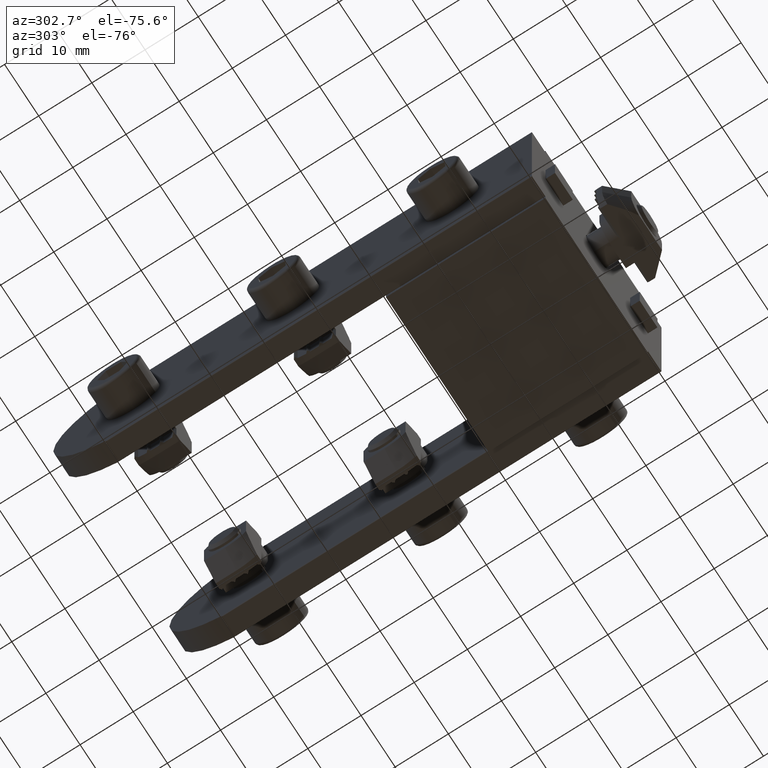
[diagram: clean part render]
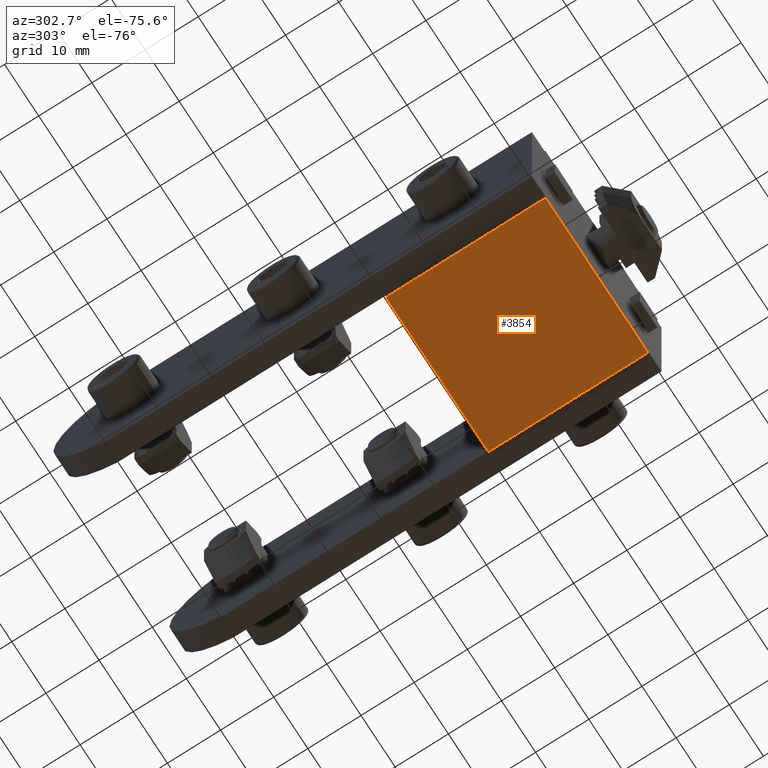
[diagram: same view with one face highlighted and labeled with its STEP entity id]
A machine part, auxiliary view. The second image highlights one B-rep face of the part: STEP entity #3854.
In plain terms, the highlighted planar face has unit normal (-0, 0, 1).
Its self-contained STEP definition (entity closure, byte-faithful):
#328 = DIRECTION ( 'NONE',  ( -2.312964634635742957E-16, -1.000000000000000000, 0.000000000000000000 ) ) ;
#330 = CARTESIAN_POINT ( 'NONE',  ( 14.99999999999999645, 22.50000000000000000, 0.000000000000000000 ) ) ;
#1026 = DIRECTION ( 'NONE',  ( 2.312964634635742957E-16, 1.000000000000000000, 0.000000000000000000 ) ) ;
#1036 = CARTESIAN_POINT ( 'NONE',  ( 14.99999999999999645, 22.50000000000000000, 30.00000000000000000 ) ) ;
#1253 = CARTESIAN_POINT ( 'NONE',  ( 14.99999999999999645, -7.500000000000000000, 30.00000000000000000 ) ) ;
#1342 = CARTESIAN_POINT ( 'NONE',  ( 14.99999999999999645, -7.500000000000000000, 30.00000000000000000 ) ) ;
#1679 = PLANE ( 'NONE',  #3510 ) ;
#2102 = CARTESIAN_POINT ( 'NONE',  ( 14.99999999999999645, -7.500000000000000000, 0.000000000000000000 ) ) ;
#2167 = LINE ( 'NONE', #1342, #2980 ) ;
#2514 = DIRECTION ( 'NONE',  ( -1.000000000000000000, 2.312964634635742957E-16, 0.000000000000000000 ) ) ;
#2603 = CARTESIAN_POINT ( 'NONE',  ( 14.99999999999999645, 22.50000000000000000, 30.00000000000000000 ) ) ;
#2684 = ORIENTED_EDGE ( 'NONE', *, *, #5193, .T. ) ;
#2763 = CARTESIAN_POINT ( 'NONE',  ( 14.99999999999999645, -7.500000000000000000, 30.00000000000000000 ) ) ;
#2802 = CARTESIAN_POINT ( 'NONE',  ( 14.99999999999999645, -7.500000000000000000, 0.000000000000000000 ) ) ;
#2803 = EDGE_CURVE ( 'NONE', #4365, #4702, #4836, .T. ) ;
#2980 = VECTOR ( 'NONE', #5270, 1000.000000000000000 ) ;
#3049 = VERTEX_POINT ( 'NONE', #2102 ) ;
#3144 = CARTESIAN_POINT ( 'NONE',  ( 14.99999999999999645, 22.50000000000000000, 30.00000000000000000 ) ) ;
#3310 = LINE ( 'NONE', #2802, #3425 ) ;
#3318 = EDGE_LOOP ( 'NONE', ( #4884, #4301, #3599, #2684 ) ) ;
#3425 = VECTOR ( 'NONE', #1026, 1000.000000000000000 ) ;
#3510 = AXIS2_PLACEMENT_3D ( 'NONE', #1253, #2514, #328 ) ;
#3599 = ORIENTED_EDGE ( 'NONE', *, *, #2803, .F. ) ;
#3663 = VECTOR ( 'NONE', #4804, 1000.000000000000000 ) ;
#3854 = ADVANCED_FACE ( 'NONE', ( #4699 ), #1679, .F. ) ;
#4042 = EDGE_CURVE ( 'NONE', #3049, #4945, #3310, .T. ) ;
#4074 = LINE ( 'NONE', #1036, #5053 ) ;
#4301 = ORIENTED_EDGE ( 'NONE', *, *, #4776, .F. ) ;
#4365 = VERTEX_POINT ( 'NONE', #2763 ) ;
#4699 = FACE_OUTER_BOUND ( 'NONE', #3318, .T. ) ;
#4702 = VERTEX_POINT ( 'NONE', #2603 ) ;
#4776 = EDGE_CURVE ( 'NONE', #4702, #4945, #4074, .T. ) ;
#4804 = DIRECTION ( 'NONE',  ( -2.312964634635742957E-16, 1.000000000000000000, -0.000000000000000000 ) ) ;
#4836 = LINE ( 'NONE', #3144, #3663 ) ;
#4884 = ORIENTED_EDGE ( 'NONE', *, *, #4042, .T. ) ;
#4945 = VERTEX_POINT ( 'NONE', #330 ) ;
#4971 = DIRECTION ( 'NONE',  ( -0.000000000000000000, -0.000000000000000000, -1.000000000000000000 ) ) ;
#5053 = VECTOR ( 'NONE', #4971, 1000.000000000000000 ) ;
#5193 = EDGE_CURVE ( 'NONE', #4365, #3049, #2167, .T. ) ;
#5270 = DIRECTION ( 'NONE',  ( -0.000000000000000000, -0.000000000000000000, -1.000000000000000000 ) ) ;